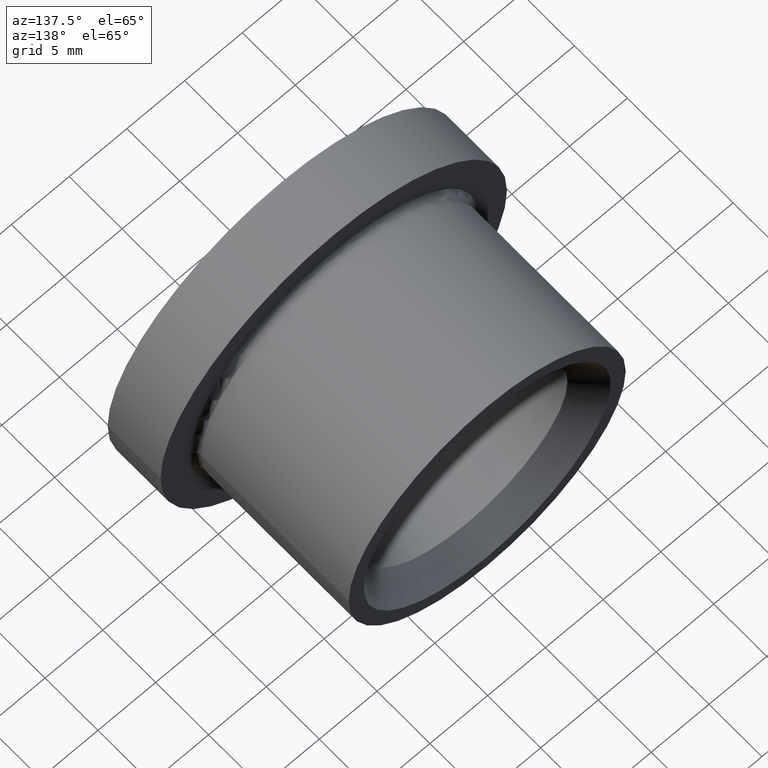
[diagram: clean part render]
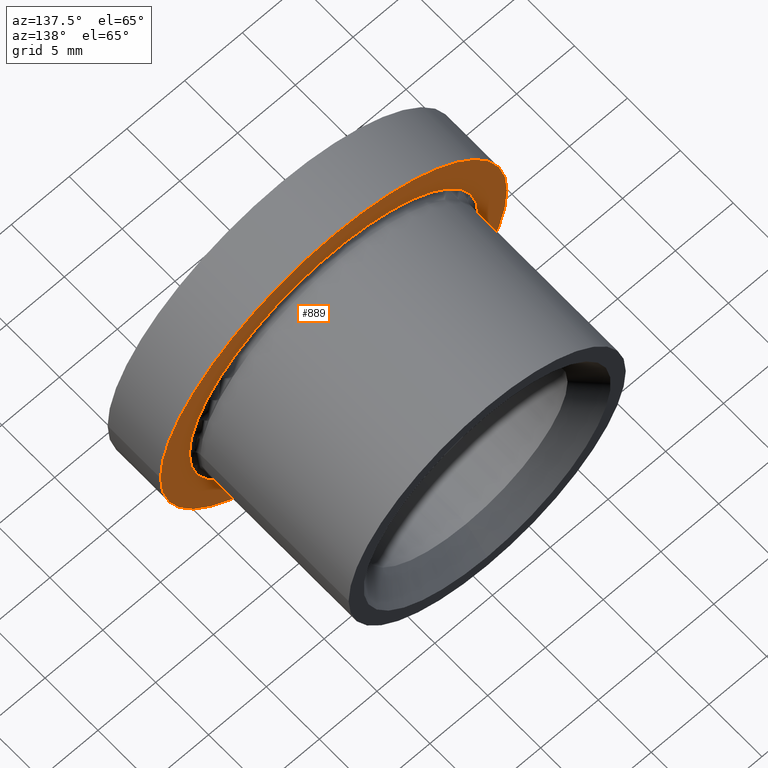
[diagram: same view with one face highlighted and labeled with its STEP entity id]
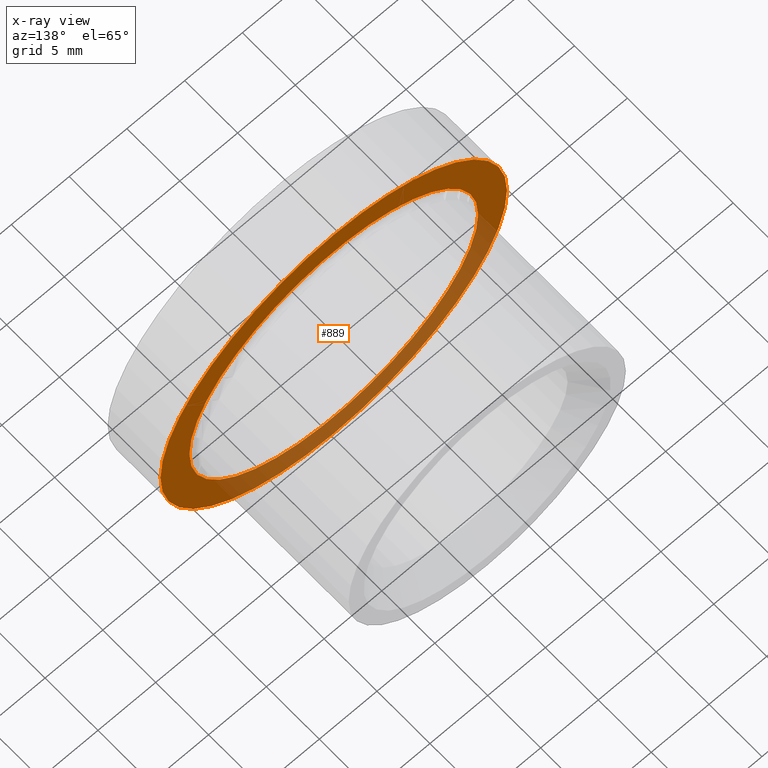
[diagram: x-ray of the same camera — body ghosted, the highlighted face saturated]
A machine part, auxiliary view. The second image highlights one B-rep face of the part: STEP entity #889.
The next image is the same camera in x-ray: the body ghosted, the highlighted face saturated — about 34% of this face is hidden behind the body in this view.
In plain terms, the highlighted planar face has unit normal (0, -1, 0).
Its self-contained STEP definition (entity closure, byte-faithful):
#26 = DIRECTION ( 'NONE',  ( 3.140119997813727100E-017, -1.000000000000000000, 0.0000000000000000000 ) ) ;
#46 = ORIENTED_EDGE ( 'NONE', *, *, #9985, .T. ) ;
#422 = DIRECTION ( 'NONE',  ( 3.140119997813727100E-017, -1.000000000000000000, 0.0000000000000000000 ) ) ;
#667 = AXIS2_PLACEMENT_3D ( 'NONE', #5024, #26, #6028 ) ;
#889 = ADVANCED_FACE ( 'NONE', ( #938, #8846 ), #1844, .F. ) ;
#938 = FACE_BOUND ( 'NONE', #7472, .T. ) ;
#952 = CARTESIAN_POINT ( 'NONE',  ( 15.00000000000000000, 5.000000000000000000, 0.0000000000000000000 ) ) ;
#965 = DIRECTION ( 'NONE',  ( -1.000000000000000000, -5.782411586589357400E-017, 0.0000000000000000000 ) ) ;
#1074 = DIRECTION ( 'NONE',  ( 1.000000000000000000, 3.140119997813727100E-017, 0.0000000000000000000 ) ) ;
#1558 = CIRCLE ( 'NONE', #6802, 15.00000000000000000 ) ;
#1646 = CARTESIAN_POINT ( 'NONE',  ( -12.50000000000000000, 4.999999999999999100, 1.530808498934191500E-015 ) ) ;
#1844 = PLANE ( 'NONE',  #2530 ) ;
#2464 = CARTESIAN_POINT ( 'NONE',  ( -1.570059998906864000E-016, 5.000000000000000900, 0.0000000000000000000 ) ) ;
#2530 = AXIS2_PLACEMENT_3D ( 'NONE', #952, #8837, #1074 ) ;
#3383 = EDGE_LOOP ( 'NONE', ( #9745, #10924 ) ) ;
#4482 = VERTEX_POINT ( 'NONE', #1646 ) ;
#4789 = CIRCLE ( 'NONE', #9817, 12.50000000000000000 ) ;
#4991 = CARTESIAN_POINT ( 'NONE',  ( -1.570059998906864000E-016, 5.000000000000000900, 0.0000000000000000000 ) ) ;
#5024 = CARTESIAN_POINT ( 'NONE',  ( -1.570059998906864000E-016, 4.999999999999999100, 0.0000000000000000000 ) ) ;
#5371 = ORIENTED_EDGE ( 'NONE', *, *, #11594, .T. ) ;
#5387 = DIRECTION ( 'NONE',  ( -3.140119997813727100E-017, 1.000000000000000000, -0.0000000000000000000 ) ) ;
#6028 = DIRECTION ( 'NONE',  ( 1.000000000000000000, 0.0000000000000000000, 0.0000000000000000000 ) ) ;
#6380 = AXIS2_PLACEMENT_3D ( 'NONE', #4991, #6906, #965 ) ;
#6381 = CARTESIAN_POINT ( 'NONE',  ( -1.570059998906864000E-016, 4.999999999999999100, 0.0000000000000000000 ) ) ;
#6580 = EDGE_CURVE ( 'NONE', #12854, #9799, #8150, .T. ) ;
#6802 = AXIS2_PLACEMENT_3D ( 'NONE', #2464, #5387, #11212 ) ;
#6906 = DIRECTION ( 'NONE',  ( -3.140119997813727100E-017, 1.000000000000000000, -0.0000000000000000000 ) ) ;
#7365 = DIRECTION ( 'NONE',  ( 1.000000000000000000, 0.0000000000000000000, 0.0000000000000000000 ) ) ;
#7472 = EDGE_LOOP ( 'NONE', ( #5371, #46 ) ) ;
#7988 = EDGE_CURVE ( 'NONE', #9799, #12854, #1558, .T. ) ;
#8150 = CIRCLE ( 'NONE', #6380, 15.00000000000000000 ) ;
#8182 = CARTESIAN_POINT ( 'NONE',  ( 12.50000000000000000, 4.999999999999999100, 0.0000000000000000000 ) ) ;
#8837 = DIRECTION ( 'NONE',  ( 3.140119997813727100E-017, -1.000000000000000000, 0.0000000000000000000 ) ) ;
#8846 = FACE_OUTER_BOUND ( 'NONE', #3383, .T. ) ;
#9745 = ORIENTED_EDGE ( 'NONE', *, *, #7988, .T. ) ;
#9799 = VERTEX_POINT ( 'NONE', #10023 ) ;
#9817 = AXIS2_PLACEMENT_3D ( 'NONE', #6381, #422, #7365 ) ;
#9985 = EDGE_CURVE ( 'NONE', #4482, #11195, #4789, .T. ) ;
#10023 = CARTESIAN_POINT ( 'NONE',  ( -15.00000000000000000, 5.000000000000000000, 0.0000000000000000000 ) ) ;
#10843 = CIRCLE ( 'NONE', #667, 12.50000000000000000 ) ;
#10924 = ORIENTED_EDGE ( 'NONE', *, *, #6580, .T. ) ;
#11195 = VERTEX_POINT ( 'NONE', #8182 ) ;
#11212 = DIRECTION ( 'NONE',  ( -1.000000000000000000, -5.782411586589357400E-017, 0.0000000000000000000 ) ) ;
#11543 = CARTESIAN_POINT ( 'NONE',  ( 15.00000000000000000, 5.000000000000001800, 1.836970198721029600E-015 ) ) ;
#11594 = EDGE_CURVE ( 'NONE', #11195, #4482, #10843, .T. ) ;
#12854 = VERTEX_POINT ( 'NONE', #11543 ) ;